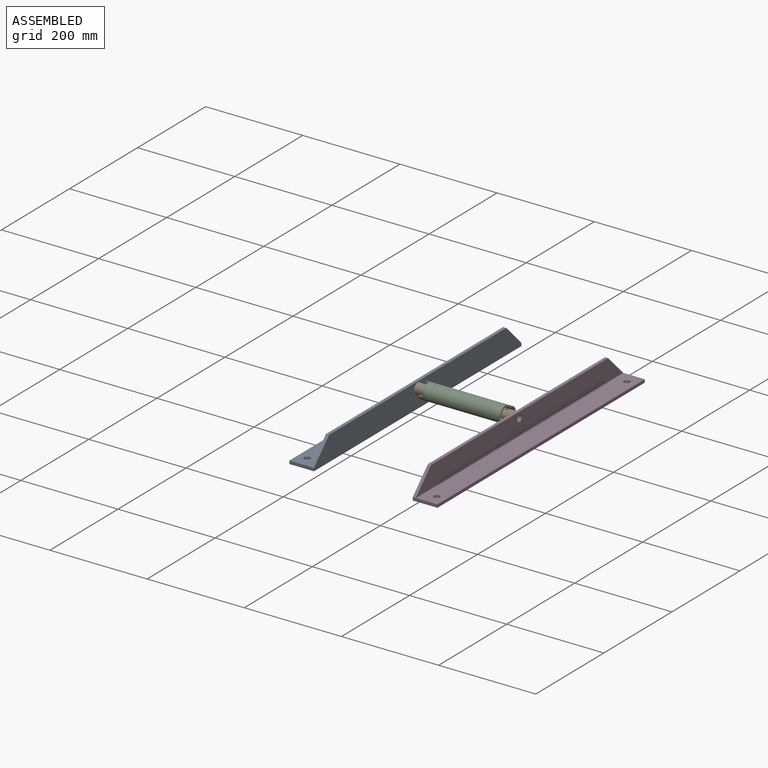
[diagram: assembled view]
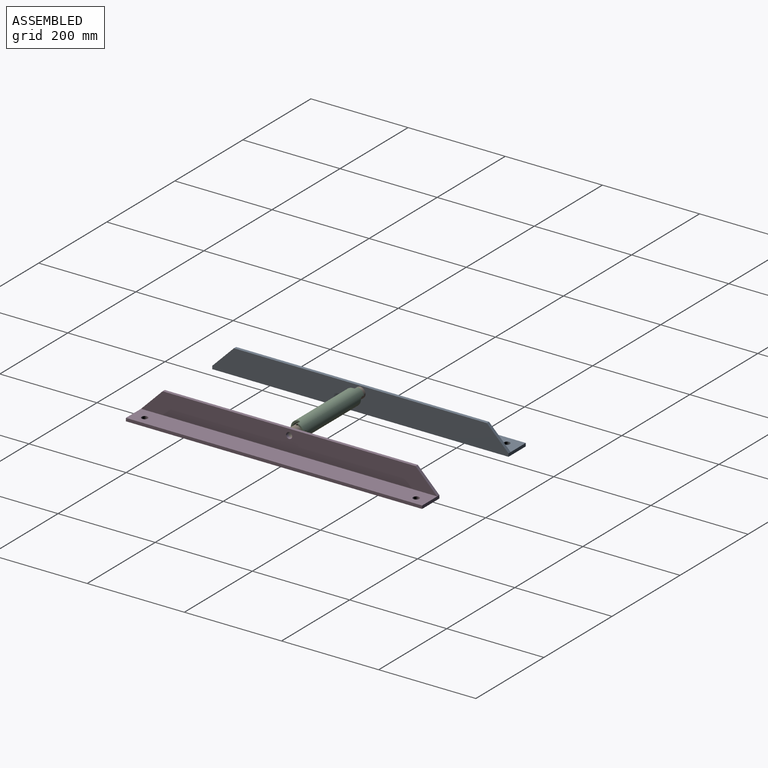
[diagram: assembled view, second angle]
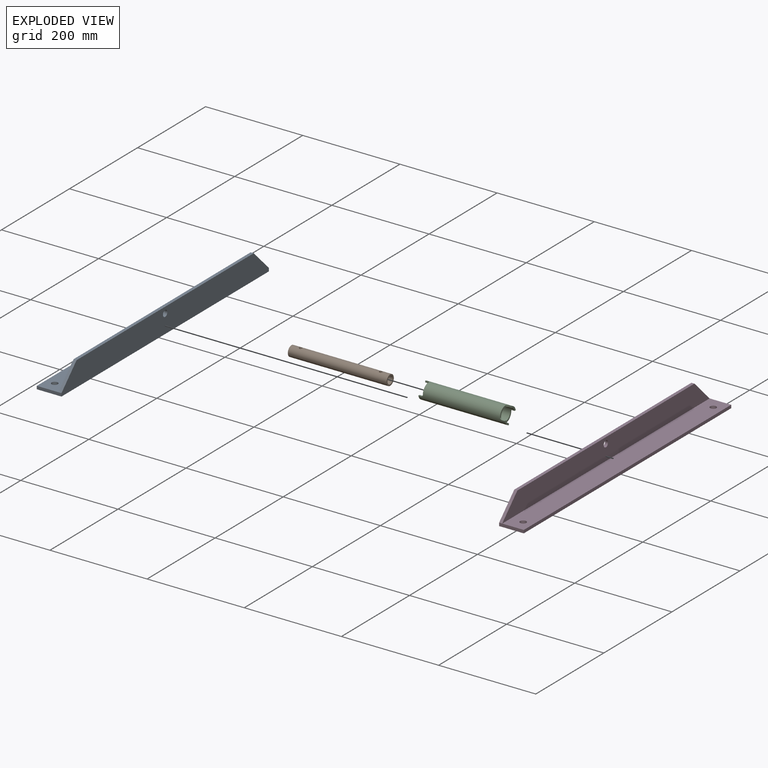
[diagram: exploded view]
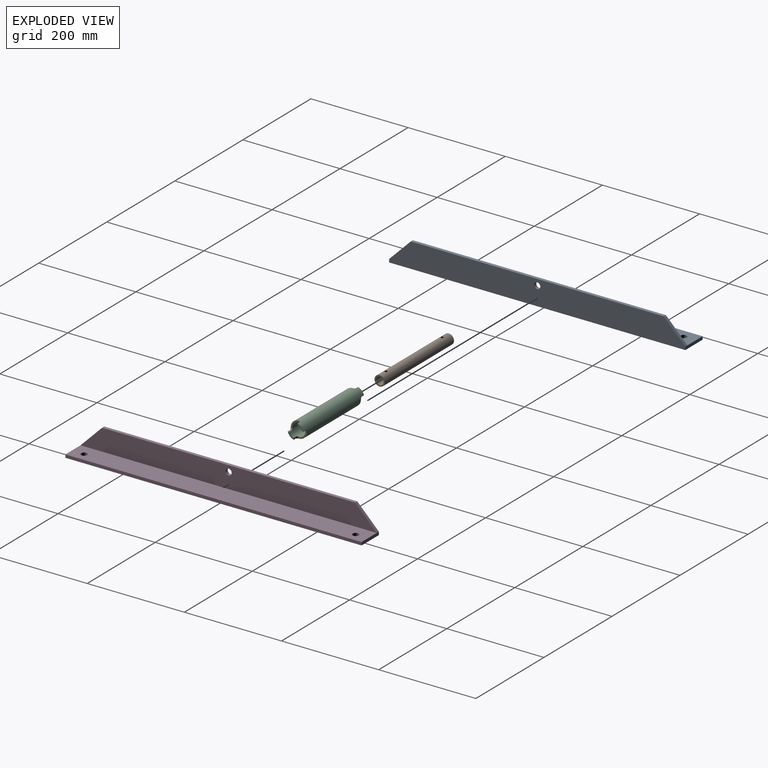
[diagram: exploded view, second angle]
ASSEMBLY  parts=4 mates=3
PART A: 13 faces, bbox 50.8x609.6x50.8 mm
  f0: plane 609.6x44.45mm, normal (1,0,0), area 24994.2mm2, adj f1,f5,f8,f9,f10
  f1: plane 520.7x6.35mm, normal (0,0,1), area 3306.4mm2, adj f0,f2,f9,f10
  f2: plane 609.6x50.8mm, normal (-1,0,0), area 28865.2mm2, adj f1,f3,f6,f7,f8,f9,f10
  f3: plane 609.6x50.8mm, normal (0,0,-1), area 30714.3mm2, adj f2,f4,f6,f7,f11,f12
  f4: plane 609.6x6.35mm, normal (1,0,0), area 3871mm2, adj f3,f5,f6,f7
  f5: plane 609.6x44.45mm, normal (0,0,1), area 26843.4mm2, adj f0,f4,f6,f7,f11,f12
  f6: plane 50.8x6.35mm, normal (0,-1,0), area 322.6mm2, adj f2,f3,f4,f5,f10
  f7: plane 50.8x6.35mm, normal (0,1,0), area 322.6mm2, adj f2,f3,f4,f5,f9
  f8: cylinder r=6.35mm len=12.7mm, axis (-1,0,0), area 253.4mm2, adj f0,f2
  f9: plane 44.45x44.45mm, normal (0,0.71,0.71), area 399.2mm2, adj f0,f1,f2,f7
  f10: plane 44.45x44.45mm, normal (0,-0.71,0.71), area 399.2mm2, adj f0,f1,f2,f6
  f11: cylinder r=6.35mm len=12.7mm, axis (0,0,1), area 253.4mm2, adj f3,f5
  f12: cylinder r=6.35mm len=12.7mm, axis (0,0,1), area 253.4mm2, adj f3,f5
PART B: 8 faces, bbox 203.2x21.3x21.3 mm
  f0: cylinder r=7.87mm len=203.2mm, axis (-1,0,0), area 9923.6mm2, adj f2,f3,f4,f5,f6,f7
  f1: cylinder r=10.67mm len=203.2mm, axis (-1,0,0), area 13492.2mm2, adj f2,f3,f4,f5,f6,f7
  f2: plane 21.34x21.34mm, normal (1,0,0), area 162.8mm2, adj f0,f1
  f3: plane 21.34x21.34mm, normal (-1,0,0), area 162.8mm2, adj f0,f1
  f4: cylinder r=3.17mm len=6.35mm, axis (0,0,1), area 57.5mm2, adj f0,f1
  f5: cylinder r=3.17mm len=6.35mm, axis (0,0,1), area 57.6mm2, adj f0,f1
  f6: cylinder r=3.17mm len=6.35mm, axis (0,0,1), area 57.5mm2, adj f0,f1
  f7: cylinder r=3.17mm len=6.35mm, axis (0,0,1), area 57.6mm2, adj f0,f1
PART C: 26 faces, bbox 177.8x33.4x33.4 mm
  f0: cylinder r=13.33mm len=177.8mm, axis (-1,0,0), area 13820.4mm2, adj f2,f3,f4,f5,f6,f7,f8,f9
  f1: cylinder r=16.7mm len=177.8mm, axis (-1,0,0), area 17380.2mm2, adj f2,f3,f4,f5,f6,f7,f8,f9
  f2: plane 12.26x12.26mm, normal (-1,0,0), area 52.4mm2, adj f0,f1,f14,f17
  f3: plane 12.26x12.26mm, normal (-1,0,0), area 52.4mm2, adj f0,f1,f13,f16
  f4: plane 12.26x12.26mm, normal (1,0,0), area 52.4mm2, adj f0,f1,f8,f10
  f5: plane 12.26x12.26mm, normal (1,0,0), area 52.4mm2, adj f0,f1,f7,f11
  f6: plane 16.69x16.69mm, normal (1,0,0), area 79.3mm2, adj f0,f1,f24,f25
  f7: plane 5.56x3.49mm, normal (0,0,-1), area 19.4mm2, adj f0,f1,f5,f24
  f8: plane 5.56x3.49mm, normal (0,1,0), area 19.4mm2, adj f0,f1,f4,f25
  f9: plane 16.69x16.69mm, normal (1,0,0), area 79.3mm2, adj f0,f1,f22,f23
  f10: plane 5.56x3.49mm, normal (0,0,1), area 19.4mm2, adj f0,f1,f4,f22
  f11: plane 5.56x3.49mm, normal (0,-1,0), area 19.4mm2, adj f0,f1,f5,f23
  f12: plane 16.69x16.69mm, normal (-1,0,0), area 79.3mm2, adj f0,f1,f20,f21
  f13: plane 5.56x3.49mm, normal (0,0,1), area 19.4mm2, adj f0,f1,f3,f21
  f14: plane 5.56x3.49mm, normal (0,-1,0), area 19.4mm2, adj f0,f1,f2,f20
  f15: plane 16.69x16.69mm, normal (-1,0,0), area 79.3mm2, adj f0,f1,f18,f19
  f16: plane 5.56x3.49mm, normal (0,1,0), area 19.4mm2, adj f0,f1,f3,f18
  f17: plane 5.56x3.49mm, normal (0,0,-1), area 19.4mm2, adj f0,f1,f2,f19
  f18: cylinder r=3.97mm len=3.97mm, axis (0,0,1), area 21.4mm2, adj f0,f1,f15,f16
  f19: cylinder r=3.97mm len=3.97mm, axis (0,1,0), area 21.4mm2, adj f0,f1,f15,f17
  f20: cylinder r=3.97mm len=3.97mm, axis (0,0,-1), area 21.4mm2, adj f0,f1,f12,f14
  f21: cylinder r=3.97mm len=3.97mm, axis (0,-1,0), area 21.4mm2, adj f0,f1,f12,f13
  f22: cylinder r=3.97mm len=3.97mm, axis (0,1,0), area 21.4mm2, adj f0,f1,f9,f10
  f23: cylinder r=3.97mm len=3.97mm, axis (0,0,1), area 21.4mm2, adj f0,f1,f9,f11
  f24: cylinder r=3.97mm len=3.97mm, axis (0,-1,0), area 21.4mm2, adj f0,f1,f6,f7
  f25: cylinder r=3.97mm len=3.97mm, axis (0,0,-1), area 21.4mm2, adj f0,f1,f6,f8
PART D: same geometry as A
PLACE A rot(axis=(0,0,1),180deg) t=(-203.2,0,0)mm
PLACE B t=(-101.6,0,38.1)mm
PLACE C t=(-101.6,0,38.1)mm
PLACE D at identity fixed
MATE revolute B.f1 <-> C.f1  axis (1,0,0) through (0,0,38.1)mm
MATE fastened A.f8 <-> B.f1  axis (1,0,0) through (-203.2,0,38.1)mm
MATE fastened B.f1 <-> D.f8  axis (1,0,0) through (0,0,38.1)mm
